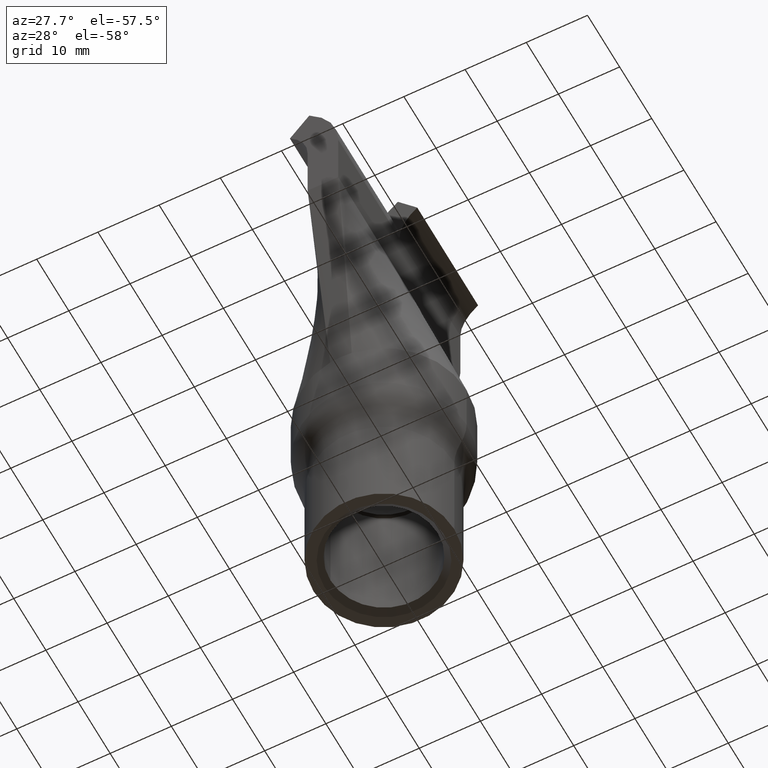
[diagram: clean part render]
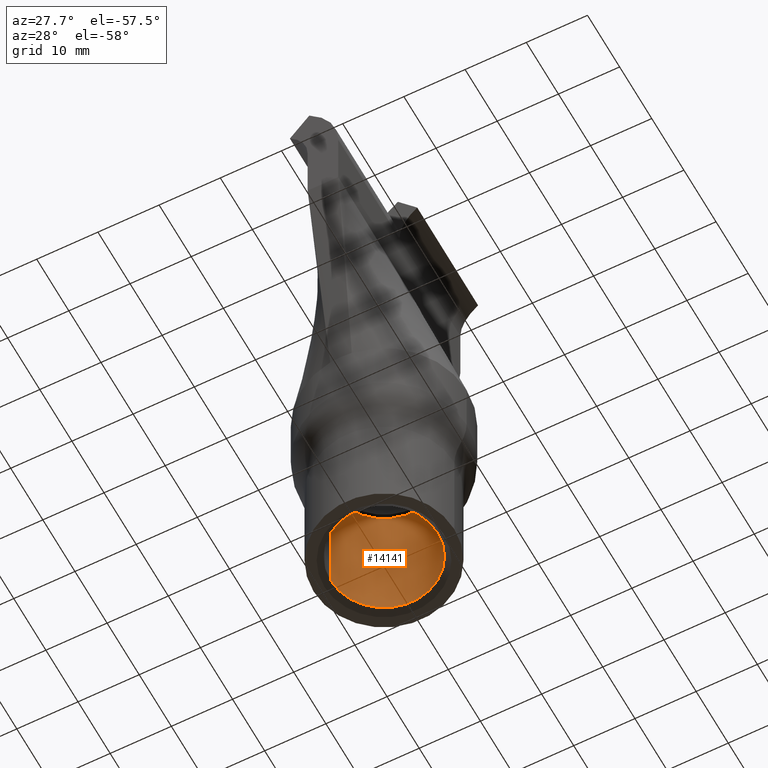
[diagram: same view with one face highlighted and labeled with its STEP entity id]
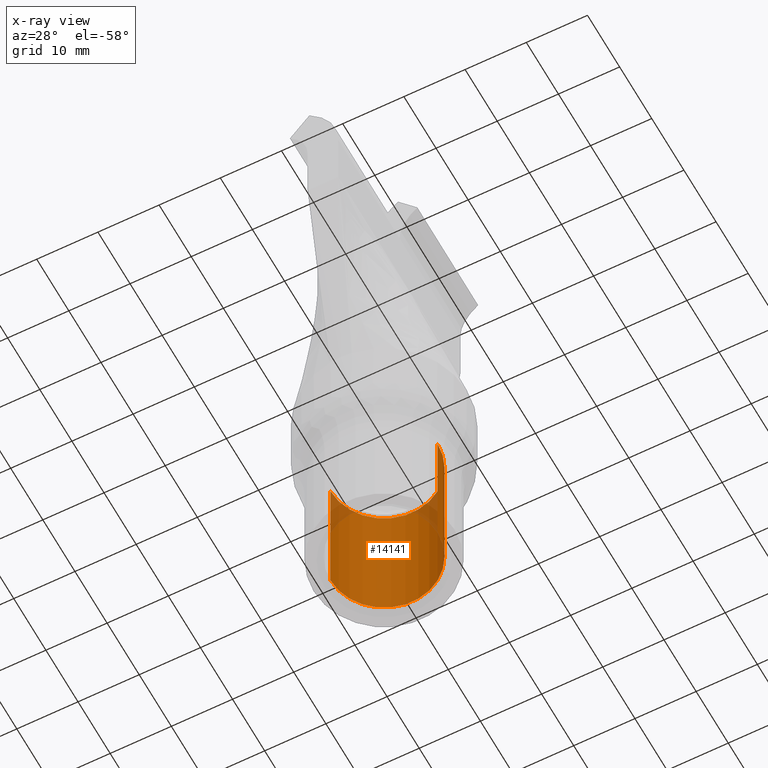
[diagram: x-ray of the same camera — body ghosted, the highlighted face saturated]
A machine part, auxiliary view. The second image highlights one B-rep face of the part: STEP entity #14141.
The next image is the same camera in x-ray: the body ghosted, the highlighted face saturated — about 8% of this face is hidden behind the body in this view.
In plain terms, the highlighted cylindrical surface (partial cylindrical patch) has radius 8.75 mm, axis along (-0, -0, -1).
Its self-contained STEP definition (entity closure, byte-faithful):
#258 = DIRECTION ( 'NONE',  ( -1.000000000000000000, 0.0000000000000000000, 0.0000000000000000000 ) ) ;
#769 = ORIENTED_EDGE ( 'NONE', *, *, #11996, .T. ) ;
#871 = EDGE_LOOP ( 'NONE', ( #11299, #1865, #769, #9511 ) ) ;
#982 = DIRECTION ( 'NONE',  ( -1.000000000000000000, 0.0000000000000000000, 0.0000000000000000000 ) ) ;
#1715 = CARTESIAN_POINT ( 'NONE',  ( 8.749999999999996400, 1.071565949253933500E-015, 0.9999999999999870100 ) ) ;
#1865 = ORIENTED_EDGE ( 'NONE', *, *, #7505, .F. ) ;
#1994 = EDGE_CURVE ( 'NONE', #11145, #8470, #9568, .T. ) ;
#3144 = DIRECTION ( 'NONE',  ( 0.0000000000000000000, 0.0000000000000000000, -1.000000000000000000 ) ) ;
#3300 = CARTESIAN_POINT ( 'NONE',  ( 0.0000000000000000000, 0.0000000000000000000, 0.9999999999999870100 ) ) ;
#3806 = DIRECTION ( 'NONE',  ( -0.0000000000000000000, -0.0000000000000000000, -1.000000000000000000 ) ) ;
#4082 = DIRECTION ( 'NONE',  ( -0.0000000000000000000, -0.0000000000000000000, -1.000000000000000000 ) ) ;
#4211 = CARTESIAN_POINT ( 'NONE',  ( 8.749999999999994700, 1.071565949253933100E-015, 25.00000000000000000 ) ) ;
#4428 = VECTOR ( 'NONE', #4671, 1000.000000000000000 ) ;
#4671 = DIRECTION ( 'NONE',  ( -0.0000000000000000000, -0.0000000000000000000, -1.000000000000000000 ) ) ;
#6277 = VECTOR ( 'NONE', #3806, 1000.000000000000000 ) ;
#6435 = CYLINDRICAL_SURFACE ( 'NONE', #14399, 8.749999999999996400 ) ;
#6473 = EDGE_CURVE ( 'NONE', #12892, #8470, #13788, .T. ) ;
#7362 = AXIS2_PLACEMENT_3D ( 'NONE', #3300, #3144, #9463 ) ;
#7505 = EDGE_CURVE ( 'NONE', #11972, #11145, #12791, .T. ) ;
#7572 = AXIS2_PLACEMENT_3D ( 'NONE', #8538, #9778, #982 ) ;
#8076 = CARTESIAN_POINT ( 'NONE',  ( -8.749999999999994700, 0.0000000000000000000, 25.00000000000000000 ) ) ;
#8470 = VERTEX_POINT ( 'NONE', #1715 ) ;
#8538 = CARTESIAN_POINT ( 'NONE',  ( 0.0000000000000000000, 0.0000000000000000000, 25.00000000000000000 ) ) ;
#9420 = CARTESIAN_POINT ( 'NONE',  ( -8.749999999999996400, 0.0000000000000000000, 0.9999999999999870100 ) ) ;
#9463 = DIRECTION ( 'NONE',  ( 1.000000000000000000, 0.0000000000000000000, 0.0000000000000000000 ) ) ;
#9511 = ORIENTED_EDGE ( 'NONE', *, *, #6473, .T. ) ;
#9568 = LINE ( 'NONE', #13861, #6277 ) ;
#9778 = DIRECTION ( 'NONE',  ( -0.0000000000000000000, -0.0000000000000000000, -1.000000000000000000 ) ) ;
#11145 = VERTEX_POINT ( 'NONE', #4211 ) ;
#11299 = ORIENTED_EDGE ( 'NONE', *, *, #1994, .F. ) ;
#11930 = CARTESIAN_POINT ( 'NONE',  ( -8.749999999999996400, 0.0000000000000000000, 0.0000000000000000000 ) ) ;
#11972 = VERTEX_POINT ( 'NONE', #8076 ) ;
#11996 = EDGE_CURVE ( 'NONE', #11972, #12892, #12724, .T. ) ;
#12724 = LINE ( 'NONE', #11930, #4428 ) ;
#12791 = CIRCLE ( 'NONE', #7572, 8.749999999999994700 ) ;
#12892 = VERTEX_POINT ( 'NONE', #9420 ) ;
#13788 = CIRCLE ( 'NONE', #7362, 8.749999999999996400 ) ;
#13861 = CARTESIAN_POINT ( 'NONE',  ( 8.749999999999996400, 1.071565949253933500E-015, 0.0000000000000000000 ) ) ;
#14141 = ADVANCED_FACE ( 'NONE', ( #14556 ), #6435, .F. ) ;
#14399 = AXIS2_PLACEMENT_3D ( 'NONE', #15175, #4082, #258 ) ;
#14556 = FACE_OUTER_BOUND ( 'NONE', #871, .T. ) ;
#15175 = CARTESIAN_POINT ( 'NONE',  ( 0.0000000000000000000, 0.0000000000000000000, 0.0000000000000000000 ) ) ;